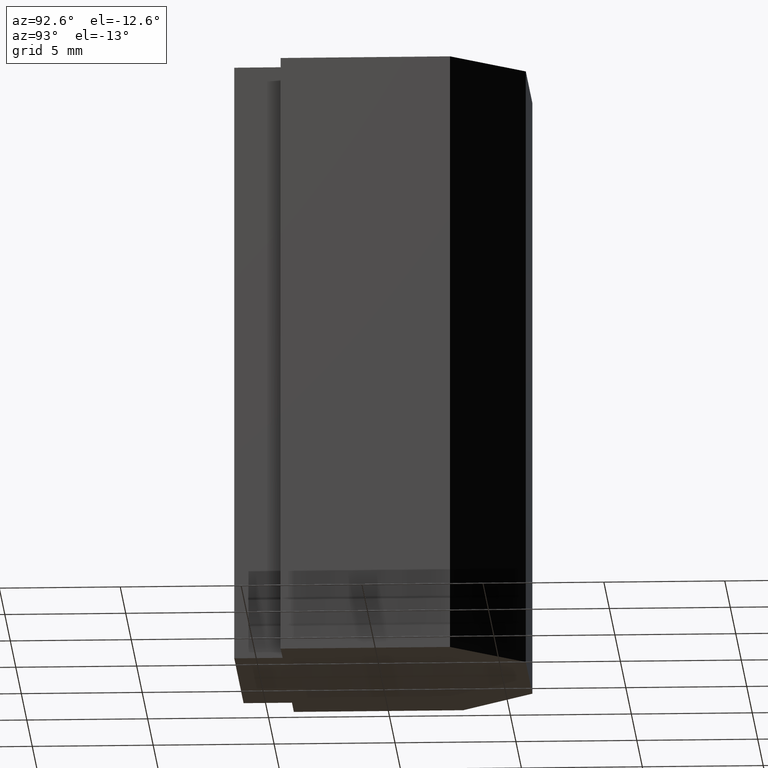
[diagram: clean part render]
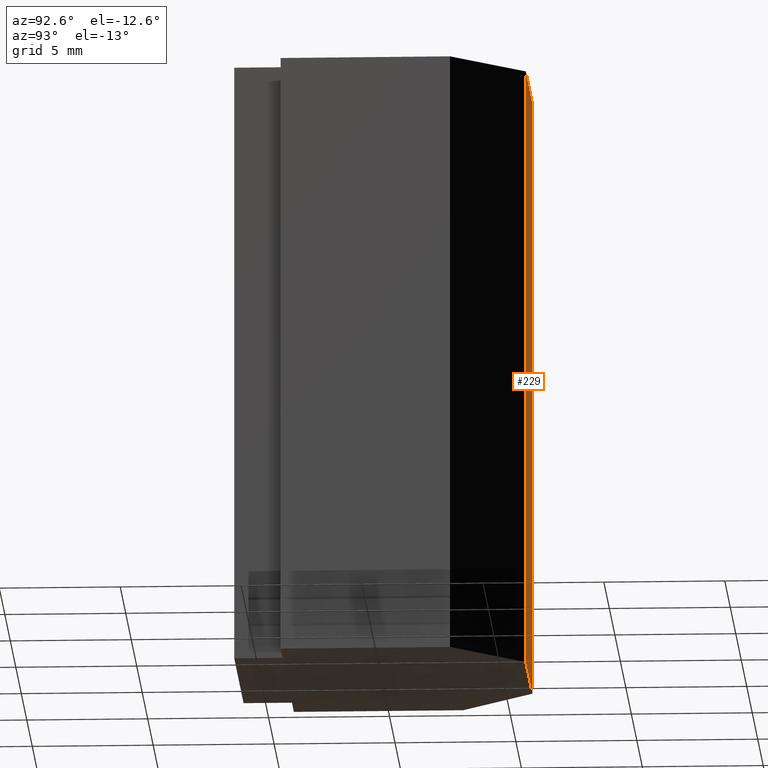
[diagram: same view with one face highlighted and labeled with its STEP entity id]
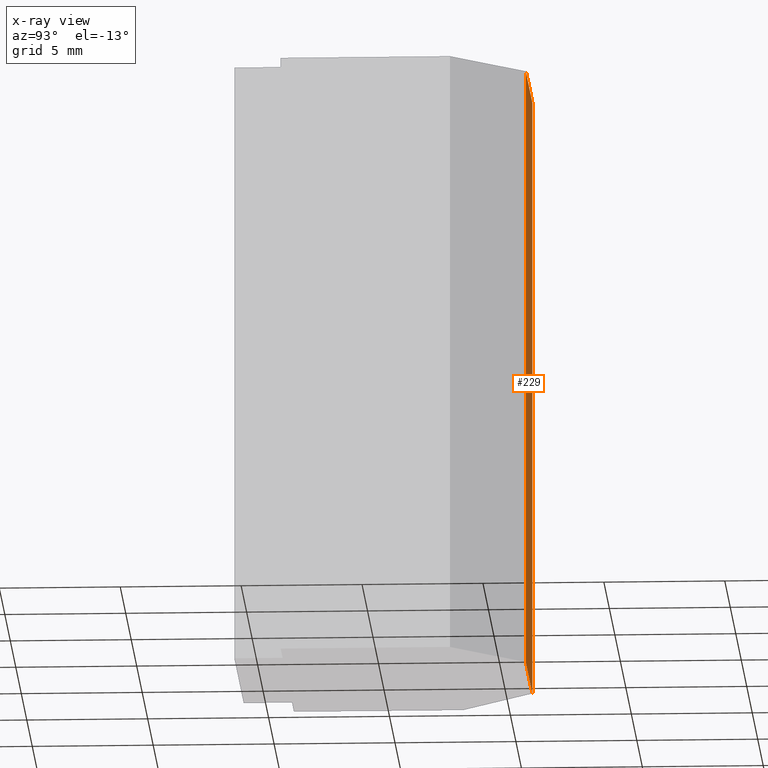
[diagram: x-ray of the same camera — body ghosted, the highlighted face saturated]
A machine part, auxiliary view. The second image highlights one B-rep face of the part: STEP entity #229.
The next image is the same camera in x-ray: the body ghosted, the highlighted face saturated — about 0% of this face is hidden behind the body in this view.
In plain terms, the highlighted planar face has unit normal (0, 1, 0).
Its self-contained STEP definition (entity closure, byte-faithful):
#23=FACE_OUTER_BOUND('',#35,.T.);
#35=EDGE_LOOP('',(#184,#185,#186,#187));
#48=LINE('',#345,#78);
#62=LINE('',#372,#92);
#63=LINE('',#375,#93);
#64=LINE('',#376,#94);
#78=VECTOR('',#281,10.);
#92=VECTOR('',#307,10.);
#93=VECTOR('',#310,10.);
#94=VECTOR('',#311,10.);
#108=VERTEX_POINT('',#342);
#109=VERTEX_POINT('',#344);
#116=VERTEX_POINT('',#370);
#117=VERTEX_POINT('',#374);
#128=EDGE_CURVE('',#109,#108,#48,.T.);
#142=EDGE_CURVE('',#116,#108,#62,.T.);
#143=EDGE_CURVE('',#116,#117,#63,.T.);
#144=EDGE_CURVE('',#117,#109,#64,.T.);
#184=ORIENTED_EDGE('',*,*,#143,.T.);
#185=ORIENTED_EDGE('',*,*,#144,.T.);
#186=ORIENTED_EDGE('',*,*,#128,.T.);
#187=ORIENTED_EDGE('',*,*,#142,.F.);
#217=PLANE('',#264);
#229=ADVANCED_FACE('',(#23),#217,.T.);
#264=AXIS2_PLACEMENT_3D('',#373,#308,#309);
#281=DIRECTION('',(-1.,0.,0.));
#307=DIRECTION('',(0.,0.,-1.));
#308=DIRECTION('center_axis',(0.,1.,0.));
#309=DIRECTION('ref_axis',(0.,0.,1.));
#310=DIRECTION('',(1.,0.,0.));
#311=DIRECTION('',(0.,0.,-1.));
#342=CARTESIAN_POINT('',(-3.,6.00000000000001,-12.5));
#344=CARTESIAN_POINT('',(3.,6.00000000000001,-12.5));
#345=CARTESIAN_POINT('',(-3.,6.00000000000001,-12.5));
#370=CARTESIAN_POINT('',(-3.,6.00000000000001,12.5));
#372=CARTESIAN_POINT('',(-3.,6.00000000000001,0.));
#373=CARTESIAN_POINT('Origin',(-3.,6.00000000000001,0.));
#374=CARTESIAN_POINT('',(3.,6.00000000000001,12.5));
#375=CARTESIAN_POINT('',(-3.,6.00000000000001,12.5));
#376=CARTESIAN_POINT('',(3.,6.00000000000001,0.));